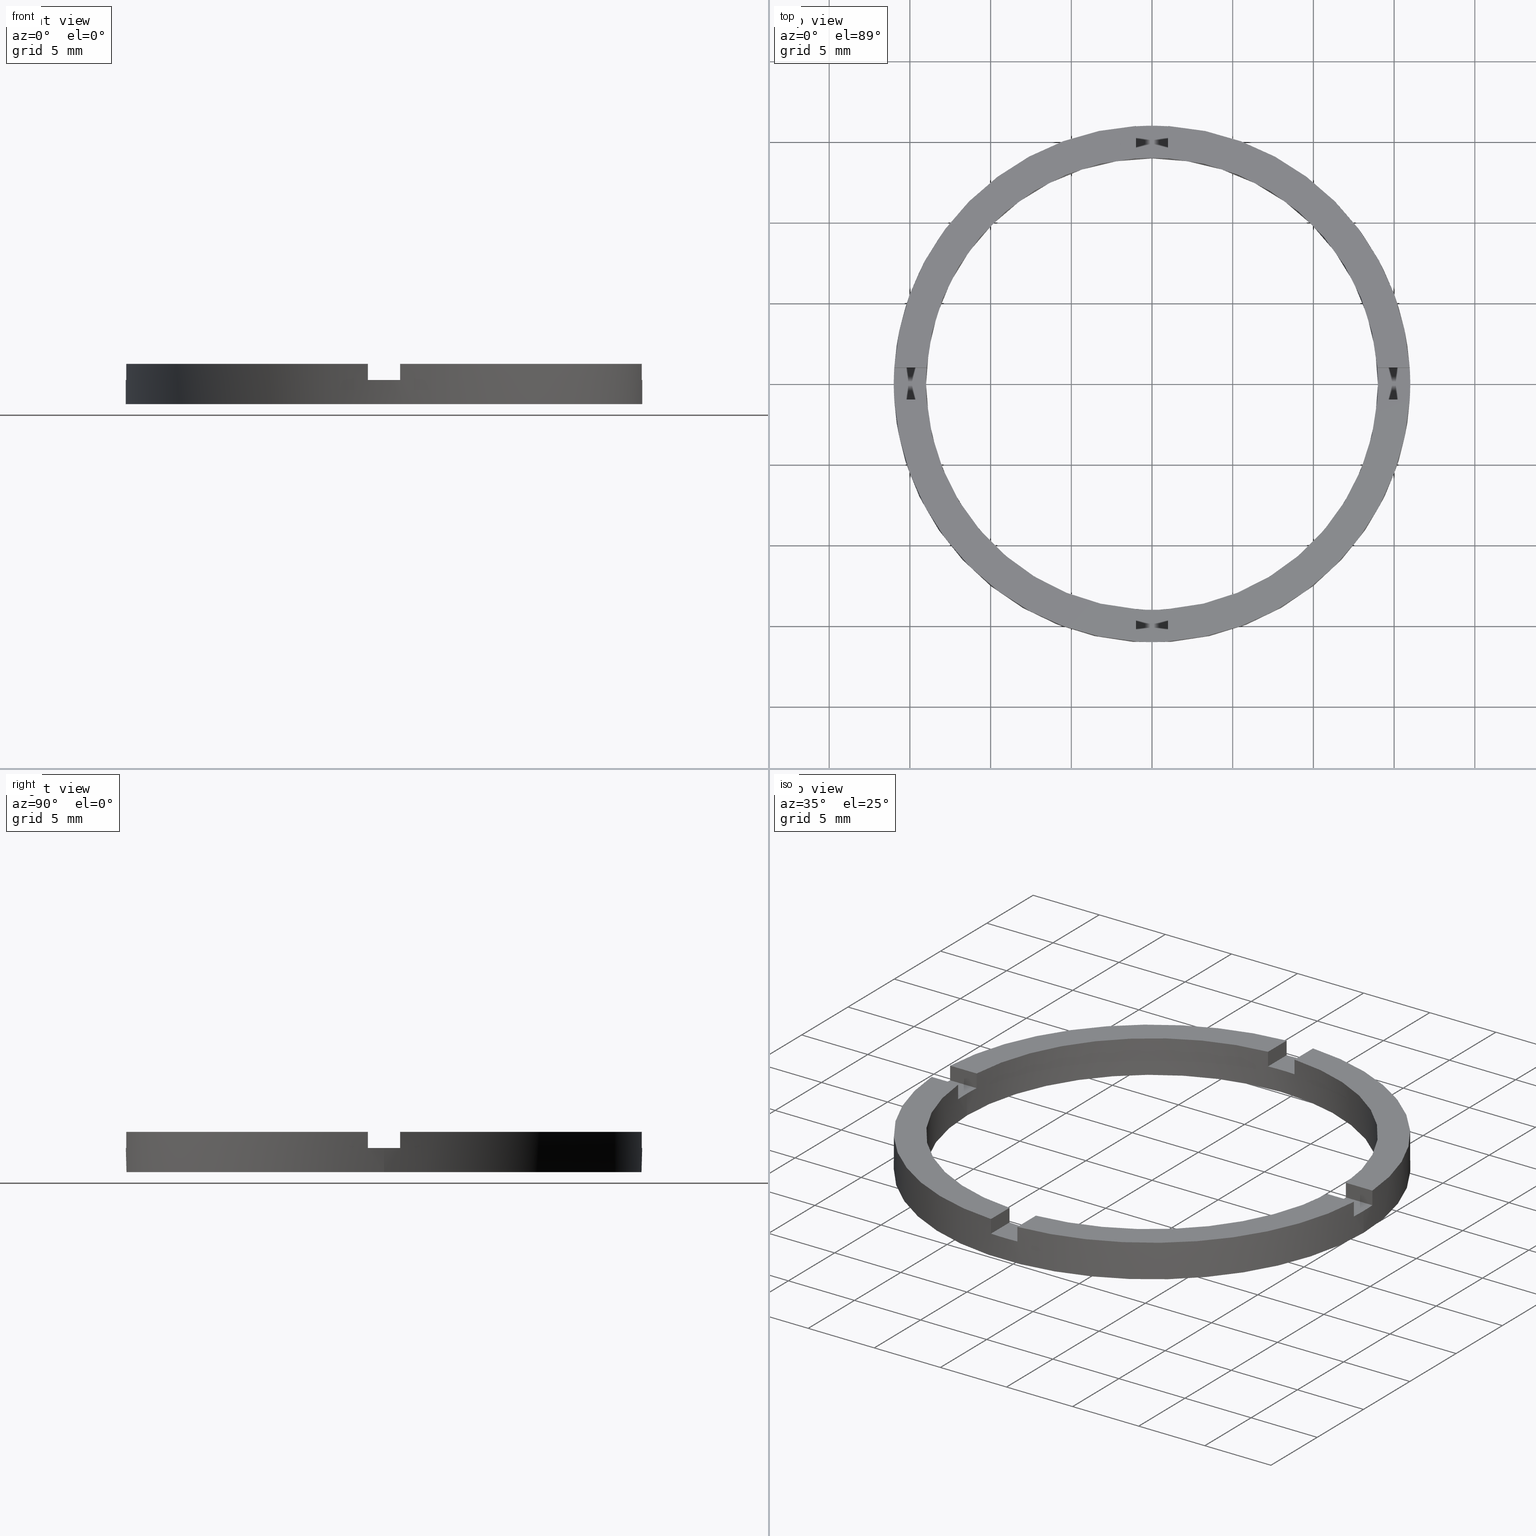
[diagram: canonical four-view strip — front | top / right | iso, engineering-drawing reading convention]
A machine part, canonical four-view strip (front | top / right | iso — engineering-drawing reading convention). The complete STEP part file that produces these views, byte-faithful:
ISO-10303-21;
HEADER;
FILE_DESCRIPTION (( 'STEP AP203' ),
    '1' );
FILE_NAME ('514070.step',
    '2024-12-26T02:34:41',
    ( 'MSI' ),
    ( '' ),
    'SwSTEP 2.0',
    'SolidWorks 2020',
    '' );
FILE_SCHEMA (( 'CONFIG_CONTROL_DESIGN' ));
ENDSEC;

DATA;
#1 = EDGE_CURVE ( 'NONE', #115, #639, #634, .T. ) ;
#2 = DIRECTION ( 'NONE',  ( 0.000000000000000000, 0.000000000000000000, 1.000000000000000000 ) ) ;
#3 = DIRECTION ( 'NONE',  ( 1.000000000000000000, 0.000000000000000000, 0.000000000000000000 ) ) ;
#4 = LINE ( 'NONE', #36, #654 ) ;
#5 = CARTESIAN_POINT ( 'NONE',  ( -15.96871942267131317, 0.9999999999999767963, 1.500000000000000000 ) ) ;
#6 = CARTESIAN_POINT ( 'NONE',  ( 15.96871942267132027, 0.9999999999998409050, 2.500000000000000000 ) ) ;
#7 = PLANE ( 'NONE',  #700 ) ;
#8 = CARTESIAN_POINT ( 'NONE',  ( 16.00000000000000000, 1.959434878635765131E-15, 1.500000000000000000 ) ) ;
#9 = CC_DESIGN_PERSON_AND_ORGANIZATION_ASSIGNMENT ( #519, #664, ( #312 ) ) ;
#10 = CARTESIAN_POINT ( 'NONE',  ( -1.000000000000162981, -13.96424004376893002, 1.500000000000000000 ) ) ;
#11 = CARTESIAN_POINT ( 'NONE',  ( -13.96424004376894068, -1.000000000000022871, 2.500000000000000000 ) ) ;
#12 = DIRECTION ( 'NONE',  ( 0.000000000000000000, 1.000000000000000000, 0.000000000000000000 ) ) ;
#13 = DIRECTION ( 'NONE',  ( 1.000000000000000000, 0.000000000000000000, 0.000000000000000000 ) ) ;
#14 = CARTESIAN_POINT ( 'NONE',  ( 14.00000000000000000, 1.714505518806294638E-15, 0.000000000000000000 ) ) ;
#15 = CARTESIAN_POINT ( 'NONE',  ( 0.000000000000000000, 0.000000000000000000, 1.500000000000000000 ) ) ;
#16 = CARTESIAN_POINT ( 'NONE',  ( 0.9999999999998373523, -15.96871942267132383, 2.500000000000000000 ) ) ;
#17 = PLANE ( 'NONE',  #536 ) ;
#18 = CARTESIAN_POINT ( 'NONE',  ( 0.000000000000000000, 0.000000000000000000, 1.500000000000000000 ) ) ;
#19 = APPROVAL_ROLE ( '' ) ;
#20 = DIRECTION ( 'NONE',  ( 0.000000000000000000, 0.000000000000000000, -1.000000000000000000 ) ) ;
#21 = CARTESIAN_POINT ( 'NONE',  ( 0.9999999999999751310, 13.96424004376894423, 2.500000000000000000 ) ) ;
#22 = EDGE_CURVE ( 'NONE', #681, #363, #626, .T. ) ;
#23 = EDGE_CURVE ( 'NONE', #216, #408, #616, .T. ) ;
#24 = DIRECTION ( 'NONE',  ( 1.000000000000000000, 0.000000000000000000, 0.000000000000000000 ) ) ;
#25 = CARTESIAN_POINT ( 'NONE',  ( 0.9999999999999751310, 15.96871942267131317, 1.500000000000000000 ) ) ;
#26 = ADVANCED_FACE ( 'NONE', ( #329 ), #50, .T. ) ;
#27 = DIRECTION ( 'NONE',  ( 1.000000000000000000, 0.000000000000000000, 0.000000000000000000 ) ) ;
#28 = CARTESIAN_POINT ( 'NONE',  ( 0.9999999999998361311, -6.000000000000180300, 1.500000000000000000 ) ) ;
#29 = APPROVAL ( #682, 'δָ��' ) ;
#30 = DIRECTION ( 'NONE',  ( -0.000000000000000000, -0.000000000000000000, -1.000000000000000000 ) ) ;
#31 = ADVANCED_FACE ( 'NONE', ( #185 ), #42, .F. ) ;
#32 = AXIS2_PLACEMENT_3D ( 'NONE', #555, #538, #324 ) ;
#33 = ADVANCED_FACE ( 'NONE', ( #193 ), #488, .F. ) ;
#34 = AXIS2_PLACEMENT_3D ( 'NONE', #569, #611, #60 ) ;
#35 = AXIS2_PLACEMENT_3D ( 'NONE', #590, #619, #293 ) ;
#36 = CARTESIAN_POINT ( 'NONE',  ( 15.96871942267132027, 0.9999999999998409050, 2.500000000000000000 ) ) ;
#37 = DIRECTION ( 'NONE',  ( -0.000000000000000000, -0.000000000000000000, -1.000000000000000000 ) ) ;
#38 = CARTESIAN_POINT ( 'NONE',  ( -6.000000000000185629, -1.000000000000021538, 1.500000000000000000 ) ) ;
#39 = DIRECTION ( 'NONE',  ( 1.301042606982605321E-16, -1.000000000000000000, 0.000000000000000000 ) ) ;
#40 = DIRECTION ( 'NONE',  ( 0.000000000000000000, 0.000000000000000000, 1.000000000000000000 ) ) ;
#41 = EDGE_CURVE ( 'NONE', #98, #115, #717, .T. ) ;
#42 = PLANE ( 'NONE',  #61 ) ;
#43 = PLANE ( 'NONE',  #313 ) ;
#44 = EDGE_CURVE ( 'NONE', #650, #453, #182, .T. ) ;
#45 = SECURITY_CLASSIFICATION_LEVEL ( 'unclassified' ) ;
#46 = AXIS2_PLACEMENT_3D ( 'NONE', #18, #561, #55 ) ;
#47 = CARTESIAN_POINT ( 'NONE',  ( 5.999999999999994671, -1.000000000000159650, 1.500000000000000000 ) ) ;
#48 = DIRECTION ( 'NONE',  ( 0.000000000000000000, 0.000000000000000000, 1.000000000000000000 ) ) ;
#49 = CARTESIAN_POINT ( 'NONE',  ( -6.000000000000185629, -1.000000000000021538, 1.500000000000000000 ) ) ;
#50 = PLANE ( 'NONE',  #99 ) ;
#51 = DIRECTION ( 'NONE',  ( 0.000000000000000000, 0.000000000000000000, 1.000000000000000000 ) ) ;
#52 = MECHANICAL_CONTEXT ( 'NONE', #437, 'mechanical' ) ;
#53 = APPROVAL ( #421, 'δָ��' ) ;
#54 = DIRECTION ( 'NONE',  ( 1.000000000000000000, 1.734723475976807341E-16, 0.000000000000000000 ) ) ;
#55 = DIRECTION ( 'NONE',  ( 1.000000000000000000, 0.000000000000000000, 0.000000000000000000 ) ) ;
#56 = DIRECTION ( 'NONE',  ( 1.301042606982605321E-16, -1.000000000000000000, 0.000000000000000000 ) ) ;
#57 = AXIS2_PLACEMENT_3D ( 'NONE', #622, #369, #714 ) ;
#58 = DIRECTION ( 'NONE',  ( -0.000000000000000000, 0.000000000000000000, 1.000000000000000000 ) ) ;
#59 = CARTESIAN_POINT ( 'NONE',  ( 0.9999999999998373523, -15.96871942267132383, 2.500000000000000000 ) ) ;
#60 = DIRECTION ( 'NONE',  ( 1.000000000000000000, 0.000000000000000000, -0.000000000000000000 ) ) ;
#61 = AXIS2_PLACEMENT_3D ( 'NONE', #240, #379, #276 ) ;
#62 = CALENDAR_DATE ( 2024, 26, 12 ) ;
#63 = EDGE_CURVE ( 'NONE', #83, #364, #458, .T. ) ;
#64 = AXIS2_PLACEMENT_3D ( 'NONE', #413, #514, #13 ) ;
#65 = CARTESIAN_POINT ( 'NONE',  ( 5.999999999999994671, -1.000000000000159650, 1.500000000000000000 ) ) ;
#66 = EDGE_CURVE ( 'NONE', #484, #672, #451, .T. ) ;
#67 = CARTESIAN_POINT ( 'NONE',  ( 16.00000000000000000, 1.959434878635765131E-15, 2.500000000000000000 ) ) ;
#68 = CALENDAR_DATE ( 2024, 26, 12 ) ;
#69 = EDGE_CURVE ( 'NONE', #679, #149, #189, .T. ) ;
#70 = DIRECTION ( 'NONE',  ( 0.000000000000000000, 0.000000000000000000, 1.000000000000000000 ) ) ;
#71 = DIRECTION ( 'NONE',  ( 0.000000000000000000, 0.000000000000000000, 1.000000000000000000 ) ) ;
#72 = EDGE_LOOP ( 'NONE', ( #407, #153, #203, #399, #496, #404, #638, #409, #716, #642, #121, #150 ) ) ;
#73 = PERSON_AND_ORGANIZATION ( #647, #644 ) ;
#74 = VECTOR ( 'NONE', #596, 1000.000000000000000 ) ;
#75 = COORDINATED_UNIVERSAL_TIME_OFFSET ( 8, 0, .AHEAD. ) ;
#76 = DIRECTION ( 'NONE',  ( 0.000000000000000000, 0.000000000000000000, 1.000000000000000000 ) ) ;
#77 = DIRECTION ( 'NONE',  ( -1.000000000000000000, 0.000000000000000000, 0.000000000000000000 ) ) ;
#78 = DIRECTION ( 'NONE',  ( -1.000000000000000000, -1.734723475976807341E-16, 0.000000000000000000 ) ) ;
#79 = CARTESIAN_POINT ( 'NONE',  ( 15.96871942267132027, 0.9999999999998409050, 1.500000000000000000 ) ) ;
#80 = VECTOR ( 'NONE', #190, 1000.000000000000000 ) ;
#81 = CARTESIAN_POINT ( 'NONE',  ( -15.96871942267130962, -1.000000000000023315, 2.500000000000000000 ) ) ;
#82 = AXIS2_PLACEMENT_3D ( 'NONE', #341, #578, #335 ) ;
#83 = VERTEX_POINT ( 'NONE', #584 ) ;
#84 = DIRECTION ( 'NONE',  ( 1.000000000000000000, 0.000000000000000000, -0.000000000000000000 ) ) ;
#85 = VECTOR ( 'NONE', #656, 1000.000000000000000 ) ;
#86 = CARTESIAN_POINT ( 'NONE',  ( 0.000000000000000000, 0.000000000000000000, 0.000000000000000000 ) ) ;
#87 = EDGE_CURVE ( 'NONE', #633, #169, #712, .T. ) ;
#88 = AXIS2_PLACEMENT_3D ( 'NONE', #527, #518, #261 ) ;
#89 = VECTOR ( 'NONE', #510, 1000.000000000000000 ) ;
#90 = LINE ( 'NONE', #38, #89 ) ;
#91 =( LENGTH_UNIT ( ) NAMED_UNIT ( * ) SI_UNIT ( .MILLI., .METRE. ) );
#92 = VECTOR ( 'NONE', #260, 1000.000000000000000 ) ;
#93 = ORIENTED_EDGE ( 'NONE', *, *, #268, .F. ) ;
#94 = ORIENTED_EDGE ( 'NONE', *, *, #580, .F. ) ;
#95 = DIRECTION ( 'NONE',  ( 0.000000000000000000, 0.000000000000000000, 1.000000000000000000 ) ) ;
#96 = VECTOR ( 'NONE', #51, 1000.000000000000000 ) ;
#97 = LINE ( 'NONE', #400, #635 ) ;
#98 = VERTEX_POINT ( 'NONE', #314 ) ;
#99 = AXIS2_PLACEMENT_3D ( 'NONE', #594, #477, #542 ) ;
#100 = LINE ( 'NONE', #603, #92 ) ;
#101 = ORIENTED_EDGE ( 'NONE', *, *, #44, .T. ) ;
#102 = DIRECTION ( 'NONE',  ( 0.000000000000000000, 0.000000000000000000, 1.000000000000000000 ) ) ;
#103 = CARTESIAN_POINT ( 'NONE',  ( -14.00000000000000000, 0.000000000000000000, 1.500000000000000000 ) ) ;
#104 = EDGE_LOOP ( 'NONE', ( #208, #163, #414, #661 ) ) ;
#105 = VERTEX_POINT ( 'NONE', #732 ) ;
#106 = EDGE_CURVE ( 'NONE', #337, #330, #97, .T. ) ;
#107 = ORIENTED_EDGE ( 'NONE', *, *, #752, .T. ) ;
#108 = UNCERTAINTY_MEASURE_WITH_UNIT (LENGTH_MEASURE( 1.000000000000000082E-05 ), #91, 'distance_accuracy_value', 'NONE');
#109 = ORIENTED_EDGE ( 'NONE', *, *, #601, .T. ) ;
#110 = AXIS2_PLACEMENT_3D ( 'NONE', #674, #175, #20 ) ;
#111 = VECTOR ( 'NONE', #273, 1000.000000000000000 ) ;
#112 = CYLINDRICAL_SURFACE ( 'NONE', #35, 14.00000000000000000 ) ;
#113 = ORIENTED_EDGE ( 'NONE', *, *, #517, .T. ) ;
#114 = PERSON_AND_ORGANIZATION ( #647, #644 ) ;
#115 = VERTEX_POINT ( 'NONE', #5 ) ;
#116 = APPROVAL_ROLE ( '' ) ;
#117 = FACE_OUTER_BOUND ( 'NONE', #186, .T. ) ;
#118 = CIRCLE ( 'NONE', #560, 16.00000000000000000 ) ;
#119 = VERTEX_POINT ( 'NONE', #509 ) ;
#120 = ORIENTED_EDGE ( 'NONE', *, *, #588, .T. ) ;
#121 = ORIENTED_EDGE ( 'NONE', *, *, #247, .T. ) ;
#122 = CARTESIAN_POINT ( 'NONE',  ( 13.96424004376895311, 0.9999999999998409050, 2.500000000000000000 ) ) ;
#123 = ORIENTED_EDGE ( 'NONE', *, *, #403, .T. ) ;
#124 = ORIENTED_EDGE ( 'NONE', *, *, #586, .F. ) ;
#125 = VECTOR ( 'NONE', #326, 1000.000000000000000 ) ;
#126 = ORIENTED_EDGE ( 'NONE', *, *, #441, .T. ) ;
#127 = ORIENTED_EDGE ( 'NONE', *, *, #517, .F. ) ;
#128 = ORIENTED_EDGE ( 'NONE', *, *, #264, .T. ) ;
#129 = EDGE_LOOP ( 'NONE', ( #478, #658, #684, #501 ) ) ;
#130 = EDGE_LOOP ( 'NONE', ( #157, #729, #167, #456, #113, #180, #706, #713, #440, #696, #424, #159 ) ) ;
#131 = ORIENTED_EDGE ( 'NONE', *, *, #278, .F. ) ;
#132 = ORIENTED_EDGE ( 'NONE', *, *, #239, .T. ) ;
#133 = ORIENTED_EDGE ( 'NONE', *, *, #23, .T. ) ;
#134 = DIRECTION ( 'NONE',  ( 1.000000000000000000, 4.336808689942018352E-17, 0.000000000000000000 ) ) ;
#135 = ADVANCED_FACE ( 'NONE', ( #627 ), #112, .F. ) ;
#136 = ORIENTED_EDGE ( 'NONE', *, *, #734, .F. ) ;
#137 = AXIS2_PLACEMENT_3D ( 'NONE', #614, #529, #27 ) ;
#138 = ORIENTED_EDGE ( 'NONE', *, *, #22, .T. ) ;
#139 = VECTOR ( 'NONE', #772, 1000.000000000000000 ) ;
#140 = VERTEX_POINT ( 'NONE', #25 ) ;
#141 = CIRCLE ( 'NONE', #583, 14.00000000000000000 ) ;
#142 = ORIENTED_EDGE ( 'NONE', *, *, #547, .T. ) ;
#143 = CIRCLE ( 'NONE', #242, 16.00000000000000000 ) ;
#144 = EDGE_LOOP ( 'NONE', ( #503, #352, #766, #127, #94, #757 ) ) ;
#145 = EDGE_CURVE ( 'NONE', #140, #377, #346, .T. ) ;
#146 = CARTESIAN_POINT ( 'NONE',  ( 0.000000000000000000, 0.000000000000000000, 1.500000000000000000 ) ) ;
#147 = ADVANCED_FACE ( 'NONE', ( #631 ), #699, .T. ) ;
#148 = ORIENTED_EDGE ( 'NONE', *, *, #239, .F. ) ;
#149 = VERTEX_POINT ( 'NONE', #449 ) ;
#150 = ORIENTED_EDGE ( 'NONE', *, *, #593, .F. ) ;
#151 = LINE ( 'NONE', #67, #422 ) ;
#152 = VERTEX_POINT ( 'NONE', #693 ) ;
#153 = ORIENTED_EDGE ( 'NONE', *, *, #278, .T. ) ;
#154 = FACE_OUTER_BOUND ( 'NONE', #412, .T. ) ;
#155 = ORIENTED_EDGE ( 'NONE', *, *, #564, .F. ) ;
#156 = DIRECTION ( 'NONE',  ( 0.000000000000000000, 0.000000000000000000, 1.000000000000000000 ) ) ;
#157 = ORIENTED_EDGE ( 'NONE', *, *, #446, .T. ) ;
#158 = CIRCLE ( 'NONE', #234, 14.00000000000000000 ) ;
#159 = ORIENTED_EDGE ( 'NONE', *, *, #653, .F. ) ;
#160 = ORIENTED_EDGE ( 'NONE', *, *, #168, .T. ) ;
#161 = DIRECTION ( 'NONE',  ( 1.000000000000000000, 0.000000000000000000, 0.000000000000000000 ) ) ;
#162 = CARTESIAN_POINT ( 'NONE',  ( 0.000000000000000000, 0.000000000000000000, 0.000000000000000000 ) ) ;
#163 = ORIENTED_EDGE ( 'NONE', *, *, #302, .F. ) ;
#164 = FACE_OUTER_BOUND ( 'NONE', #623, .T. ) ;
#165 = ORIENTED_EDGE ( 'NONE', *, *, #547, .F. ) ;
#166 = CIRCLE ( 'NONE', #553, 16.00000000000000000 ) ;
#167 = ORIENTED_EDGE ( 'NONE', *, *, #264, .F. ) ;
#168 = EDGE_CURVE ( 'NONE', #679, #639, #118, .T. ) ;
#169 = VERTEX_POINT ( 'NONE', #318 ) ;
#170 = VECTOR ( 'NONE', #259, 1000.000000000000000 ) ;
#171 = DIRECTION ( 'NONE',  ( -1.000000000000000000, 0.000000000000000000, 0.000000000000000000 ) ) ;
#172 = DIRECTION ( 'NONE',  ( 0.000000000000000000, -0.000000000000000000, 1.000000000000000000 ) ) ;
#173 = CC_DESIGN_APPROVAL ( #225, ( #255 ) ) ;
#174 = CIRCLE ( 'NONE', #321, 14.00000000000000000 ) ;
#175 = DIRECTION ( 'NONE',  ( 1.000000000000000000, -0.000000000000000000, 0.000000000000000000 ) ) ;
#176 = ORIENTED_EDGE ( 'NONE', *, *, #66, .F. ) ;
#177 = ORIENTED_EDGE ( 'NONE', *, *, #540, .F. ) ;
#178 = DESIGN_CONTEXT ( 'detailed design', #199, 'design' ) ;
#179 = VERTEX_POINT ( 'NONE', #549 ) ;
#180 = ORIENTED_EDGE ( 'NONE', *, *, #63, .F. ) ;
#181 = CARTESIAN_POINT ( 'NONE',  ( 0.9999999999999751310, 6.000000000000000000, 1.500000000000000000 ) ) ;
#182 = LINE ( 'NONE', #628, #443 ) ;
#183 = PLANE ( 'NONE',  #448 ) ;
#184 = EDGE_LOOP ( 'NONE', ( #128, #685 ) ) ;
#185 = FACE_OUTER_BOUND ( 'NONE', #711, .T. ) ;
#186 = EDGE_LOOP ( 'NONE', ( #756, #374, #486, #375 ) ) ;
#187 = AXIS2_PLACEMENT_3D ( 'NONE', #378, #236, #271 ) ;
#188 = VERTEX_POINT ( 'NONE', #21 ) ;
#189 = LINE ( 'NONE', #248, #439 ) ;
#190 = DIRECTION ( 'NONE',  ( 1.000000000000000000, 4.336808689942018352E-17, 0.000000000000000000 ) ) ;
#191 = CARTESIAN_POINT ( 'NONE',  ( 0.000000000000000000, 0.000000000000000000, 1.500000000000000000 ) ) ;
#192 = ORIENTED_EDGE ( 'NONE', *, *, #376, .F. ) ;
#193 = FACE_OUTER_BOUND ( 'NONE', #444, .T. ) ;
#194 = EDGE_CURVE ( 'NONE', #345, #188, #665, .T. ) ;
#195 = CARTESIAN_POINT ( 'NONE',  ( 0.000000000000000000, 0.000000000000000000, 2.500000000000000000 ) ) ;
#196 = CARTESIAN_POINT ( 'NONE',  ( 15.96871942267130429, -1.000000000000159206, 2.500000000000000000 ) ) ;
#197 = ORIENTED_EDGE ( 'NONE', *, *, #69, .T. ) ;
#198 = VECTOR ( 'NONE', #258, 1000.000000000000000 ) ;
#199 = APPLICATION_CONTEXT ( 'configuration controlled 3d designs of mechanical parts and assemblies' ) ;
#200 = CIRCLE ( 'NONE', #774, 16.00000000000000000 ) ;
#201 = VERTEX_POINT ( 'NONE', #10 ) ;
#202 = VECTOR ( 'NONE', #12, 1000.000000000000000 ) ;
#203 = ORIENTED_EDGE ( 'NONE', *, *, #291, .F. ) ;
#204 = CARTESIAN_POINT ( 'NONE',  ( -14.00000000000000000, 0.000000000000000000, 2.500000000000000000 ) ) ;
#205 = CARTESIAN_POINT ( 'NONE',  ( -13.96424004376894246, 0.9999999999999772404, 2.500000000000000000 ) ) ;
#206 = VERTEX_POINT ( 'NONE', #284 ) ;
#207 = CLOSED_SHELL ( 'NONE', ( #135, #531, #26, #539, #147, #615, #577, #301, #367, #232, #354, #343, #707, #270, #296, #31, #621, #465, #33, #537, #572 ) ) ;
#208 = ORIENTED_EDGE ( 'NONE', *, *, #752, .F. ) ;
#209 = EDGE_LOOP ( 'NONE', ( #393, #126, #107, #192 ) ) ;
#210 = EDGE_CURVE ( 'NONE', #633, #140, #380, .T. ) ;
#211 = ORIENTED_EDGE ( 'NONE', *, *, #677, .F. ) ;
#212 = CIRCLE ( 'NONE', #250, 14.00000000000000000 ) ;
#213 = ORIENTED_EDGE ( 'NONE', *, *, #446, .F. ) ;
#214 = VECTOR ( 'NONE', #563, 1000.000000000000000 ) ;
#215 = LOCAL_TIME ( 10, 34, 41.00000000000000000, #764 ) ;
#216 = VERTEX_POINT ( 'NONE', #602 ) ;
#217 = FACE_OUTER_BOUND ( 'NONE', #671, .T. ) ;
#218 = APPROVAL_PERSON_ORGANIZATION ( #598, #53, #743 ) ;
#219 = DIRECTION ( 'NONE',  ( -0.000000000000000000, -0.000000000000000000, -1.000000000000000000 ) ) ;
#220 = ORIENTED_EDGE ( 'NONE', *, *, #566, .T. ) ;
#221 = LINE ( 'NONE', #749, #202 ) ;
#222 = VECTOR ( 'NONE', #249, 1000.000000000000000 ) ;
#223 = APPROVAL_PERSON_ORGANIZATION ( #235, #29, #116 ) ;
#224 = ORIENTED_EDGE ( 'NONE', *, *, #231, .F. ) ;
#225 = APPROVAL ( #768, 'δָ��' ) ;
#226 = VECTOR ( 'NONE', #265, 1000.000000000000000 ) ;
#227 = COORDINATED_UNIVERSAL_TIME_OFFSET ( 8, 0, .AHEAD. ) ;
#228 = FACE_OUTER_BOUND ( 'NONE', #753, .T. ) ;
#229 = PLANE ( 'NONE',  #546 ) ;
#230 = CYLINDRICAL_SURFACE ( 'NONE', #57, 14.00000000000000000 ) ;
#231 = EDGE_CURVE ( 'NONE', #337, #363, #355, .T. ) ;
#232 = ADVANCED_FACE ( 'NONE', ( #637 ), #17, .F. ) ;
#233 = DIRECTION ( 'NONE',  ( -0.000000000000000000, -0.000000000000000000, -1.000000000000000000 ) ) ;
#234 = AXIS2_PLACEMENT_3D ( 'NONE', #587, #543, #274 ) ;
#235 = PERSON_AND_ORGANIZATION ( #647, #644 ) ;
#236 = DIRECTION ( 'NONE',  ( 0.000000000000000000, 0.000000000000000000, 1.000000000000000000 ) ) ;
#237 = AXIS2_PLACEMENT_3D ( 'NONE', #390, #544, #319 ) ;
#238 = PERSON_AND_ORGANIZATION ( #647, #644 ) ;
#239 = EDGE_CURVE ( 'NONE', #408, #494, #143, .T. ) ;
#240 = CARTESIAN_POINT ( 'NONE',  ( 5.999999999999994671, 0.9999999999998404610, 1.500000000000000000 ) ) ;
#241 = CARTESIAN_POINT ( 'NONE',  ( 13.96424004376893002, -1.000000000000159206, 2.500000000000000000 ) ) ;
#242 = AXIS2_PLACEMENT_3D ( 'NONE', #279, #102, #525 ) ;
#243 = DIRECTION ( 'NONE',  ( -1.000000000000000000, -1.301042606982605321E-16, 0.000000000000000000 ) ) ;
#244 = DIRECTION ( 'NONE',  ( -0.000000000000000000, -0.000000000000000000, -1.000000000000000000 ) ) ;
#245 = CARTESIAN_POINT ( 'NONE',  ( 0.000000000000000000, 0.000000000000000000, 2.500000000000000000 ) ) ;
#246 = EDGE_CURVE ( 'NONE', #140, #507, #395, .T. ) ;
#247 = EDGE_CURVE ( 'NONE', #745, #206, #675, .T. ) ;
#248 = CARTESIAN_POINT ( 'NONE',  ( -1.000000000000024869, 6.000000000000000000, 2.500000000000000000 ) ) ;
#249 = DIRECTION ( 'NONE',  ( 0.000000000000000000, 0.000000000000000000, 1.000000000000000000 ) ) ;
#250 = AXIS2_PLACEMENT_3D ( 'NONE', #162, #464, #3 ) ;
#251 = DIRECTION ( 'NONE',  ( 0.000000000000000000, 0.000000000000000000, 1.000000000000000000 ) ) ;
#252 = CARTESIAN_POINT ( 'NONE',  ( 0.000000000000000000, 0.000000000000000000, 0.000000000000000000 ) ) ;
#253 = FACE_OUTER_BOUND ( 'NONE', #666, .T. ) ;
#254 = CARTESIAN_POINT ( 'NONE',  ( 0.000000000000000000, 0.000000000000000000, 2.500000000000000000 ) ) ;
#255 = PRODUCT_DEFINITION ( 'δ֪', '', #467, #178 ) ;
#256 = DIRECTION ( 'NONE',  ( 0.000000000000000000, 0.000000000000000000, 1.000000000000000000 ) ) ;
#257 = AXIS2_PLACEMENT_3D ( 'NONE', #334, #256, #436 ) ;
#258 = DIRECTION ( 'NONE',  ( -0.000000000000000000, -1.000000000000000000, -0.000000000000000000 ) ) ;
#259 = DIRECTION ( 'NONE',  ( -0.000000000000000000, -0.000000000000000000, -1.000000000000000000 ) ) ;
#260 = DIRECTION ( 'NONE',  ( 1.301042606982605321E-16, -1.000000000000000000, 0.000000000000000000 ) ) ;
#261 = DIRECTION ( 'NONE',  ( 1.000000000000000000, 0.000000000000000000, 0.000000000000000000 ) ) ;
#262 = EDGE_CURVE ( 'NONE', #681, #83, #430, .T. ) ;
#263 = CARTESIAN_POINT ( 'NONE',  ( 0.000000000000000000, 0.000000000000000000, 2.500000000000000000 ) ) ;
#264 = EDGE_CURVE ( 'NONE', #206, #608, #141, .T. ) ;
#265 = DIRECTION ( 'NONE',  ( -0.000000000000000000, -0.000000000000000000, -1.000000000000000000 ) ) ;
#266 = CARTESIAN_POINT ( 'NONE',  ( -15.96871942267131317, 0.9999999999999767963, 2.500000000000000000 ) ) ;
#267 = DIRECTION ( 'NONE',  ( -0.000000000000000000, 0.000000000000000000, 1.000000000000000000 ) ) ;
#268 = EDGE_CURVE ( 'NONE', #679, #377, #697, .T. ) ;
#269 = AXIS2_PLACEMENT_3D ( 'NONE', #245, #709, #281 ) ;
#270 = ADVANCED_FACE ( 'NONE', ( #678 ), #7, .F. ) ;
#271 = DIRECTION ( 'NONE',  ( 1.000000000000000000, 0.000000000000000000, 0.000000000000000000 ) ) ;
#272 = CARTESIAN_POINT ( 'NONE',  ( 0.000000000000000000, 0.000000000000000000, 2.500000000000000000 ) ) ;
#273 = DIRECTION ( 'NONE',  ( 0.000000000000000000, 0.000000000000000000, 1.000000000000000000 ) ) ;
#274 = DIRECTION ( 'NONE',  ( 1.000000000000000000, 0.000000000000000000, 0.000000000000000000 ) ) ;
#275 = DIRECTION ( 'NONE',  ( -0.000000000000000000, -0.000000000000000000, -1.000000000000000000 ) ) ;
#276 = DIRECTION ( 'NONE',  ( -1.000000000000000000, -4.336808689942018352E-17, 0.000000000000000000 ) ) ;
#277 = DIRECTION ( 'NONE',  ( 1.000000000000000000, 0.000000000000000000, 0.000000000000000000 ) ) ;
#278 = EDGE_CURVE ( 'NONE', #394, #453, #158, .T. ) ;
#279 = CARTESIAN_POINT ( 'NONE',  ( 0.000000000000000000, 0.000000000000000000, 1.500000000000000000 ) ) ;
#280 = CARTESIAN_POINT ( 'NONE',  ( -15.96871942267131317, 0.9999999999999767963, 2.500000000000000000 ) ) ;
#281 = DIRECTION ( 'NONE',  ( 1.000000000000000000, 0.000000000000000000, 0.000000000000000000 ) ) ;
#282 = CARTESIAN_POINT ( 'NONE',  ( 0.000000000000000000, 0.000000000000000000, 0.000000000000000000 ) ) ;
#283 = CARTESIAN_POINT ( 'NONE',  ( 5.999999999999994671, 0.9999999999998404610, 2.500000000000000000 ) ) ;
#284 = CARTESIAN_POINT ( 'NONE',  ( -14.00000000000000000, 0.000000000000000000, 0.000000000000000000 ) ) ;
#285 = DIRECTION ( 'NONE',  ( -1.000000000000000000, -4.336808689942018352E-17, -0.000000000000000000 ) ) ;
#286 = EDGE_CURVE ( 'NONE', #394, #608, #411, .T. ) ;
#287 = CC_DESIGN_PERSON_AND_ORGANIZATION_ASSIGNMENT ( #238, #673, ( #467 ) ) ;
#288 = DIRECTION ( 'NONE',  ( -1.301042606982605321E-16, 1.000000000000000000, 0.000000000000000000 ) ) ;
#289 = PLANE ( 'NONE',  #110 ) ;
#290 = DIRECTION ( 'NONE',  ( -1.000000000000000000, -1.734723475976807341E-16, 0.000000000000000000 ) ) ;
#291 = EDGE_CURVE ( 'NONE', #345, #453, #428, .T. ) ;
#292 = DIRECTION ( 'NONE',  ( 1.000000000000000000, 0.000000000000000000, 0.000000000000000000 ) ) ;
#293 = DIRECTION ( 'NONE',  ( -1.000000000000000000, 0.000000000000000000, 0.000000000000000000 ) ) ;
#294 = AXIS2_PLACEMENT_3D ( 'NONE', #670, #328, #288 ) ;
#295 = PLANE ( 'NONE',  #366 ) ;
#296 = ADVANCED_FACE ( 'NONE', ( #686 ), #459, .T. ) ;
#297 = CARTESIAN_POINT ( 'NONE',  ( -16.00000000000000000, 0.000000000000000000, 0.000000000000000000 ) ) ;
#298 = CARTESIAN_POINT ( 'NONE',  ( 13.96424004376895311, 0.9999999999998409050, 2.500000000000000000 ) ) ;
#299 = DIRECTION ( 'NONE',  ( -1.000000000000000000, -1.734723475976807341E-16, 0.000000000000000000 ) ) ;
#300 = DIRECTION ( 'NONE',  ( 1.000000000000000000, 0.000000000000000000, 0.000000000000000000 ) ) ;
#301 = ADVANCED_FACE ( 'NONE', ( #164 ), #705, .T. ) ;
#302 = EDGE_CURVE ( 'NONE', #83, #356, #418, .T. ) ;
#303 = CARTESIAN_POINT ( 'NONE',  ( -6.000000000000185629, 0.9999999999999785727, 1.500000000000000000 ) ) ;
#304 = EDGE_CURVE ( 'NONE', #660, #507, #166, .T. ) ;
#305 = CARTESIAN_POINT ( 'NONE',  ( -1.000000000000162981, -13.96424004376893002, 2.500000000000000000 ) ) ;
#306 = APPROVAL_DATE_TIME ( #606, #225 ) ;
#307 = LOCAL_TIME ( 10, 34, 41.00000000000000000, #75 ) ;
#308 = DATE_AND_TIME ( #62, #307 ) ;
#309 = DIRECTION ( 'NONE',  ( -0.000000000000000000, -1.000000000000000000, -0.000000000000000000 ) ) ;
#310 = DIRECTION ( 'NONE',  ( 1.000000000000000000, 0.000000000000000000, -0.000000000000000000 ) ) ;
#311 = CARTESIAN_POINT ( 'NONE',  ( -1.000000000000163869, -6.000000000000180300, 1.500000000000000000 ) ) ;
#312 = SECURITY_CLASSIFICATION ( '', '', #45 ) ;
#313 = AXIS2_PLACEMENT_3D ( 'NONE', #252, #591, #84 ) ;
#314 = CARTESIAN_POINT ( 'NONE',  ( -13.96424004376894246, 0.9999999999999772404, 1.500000000000000000 ) ) ;
#315 = CARTESIAN_POINT ( 'NONE',  ( 15.96871942267130429, -1.000000000000159206, 2.500000000000000000 ) ) ;
#316 = EDGE_CURVE ( 'NONE', #105, #419, #174, .T. ) ;
#317 = DIRECTION ( 'NONE',  ( -0.000000000000000000, -0.000000000000000000, -1.000000000000000000 ) ) ;
#318 = CARTESIAN_POINT ( 'NONE',  ( -1.000000000000024869, 13.96424004376894068, 1.500000000000000000 ) ) ;
#319 = DIRECTION ( 'NONE',  ( 1.000000000000000000, 0.000000000000000000, 0.000000000000000000 ) ) ;
#320 = CARTESIAN_POINT ( 'NONE',  ( 0.000000000000000000, 0.000000000000000000, 1.500000000000000000 ) ) ;
#321 = AXIS2_PLACEMENT_3D ( 'NONE', #620, #71, #24 ) ;
#322 = PLANE ( 'NONE',  #491 ) ;
#323 = DIRECTION ( 'NONE',  ( 1.000000000000000000, 0.000000000000000000, 0.000000000000000000 ) ) ;
#324 = DIRECTION ( 'NONE',  ( 1.000000000000000000, 0.000000000000000000, 0.000000000000000000 ) ) ;
#325 = AXIS2_PLACEMENT_3D ( 'NONE', #272, #70, #161 ) ;
#326 = DIRECTION ( 'NONE',  ( 0.000000000000000000, 1.000000000000000000, 0.000000000000000000 ) ) ;
#327 = AXIS2_PLACEMENT_3D ( 'NONE', #609, #689, #776 ) ;
#328 = DIRECTION ( 'NONE',  ( 1.000000000000000000, 1.301042606982605321E-16, 0.000000000000000000 ) ) ;
#329 = FACE_OUTER_BOUND ( 'NONE', #425, .T. ) ;
#330 = VERTEX_POINT ( 'NONE', #297 ) ;
#331 = DIRECTION ( 'NONE',  ( 0.000000000000000000, 0.000000000000000000, 1.000000000000000000 ) ) ;
#332 = VERTEX_POINT ( 'NONE', #613 ) ;
#333 = EDGE_CURVE ( 'NONE', #484, #332, #702, .T. ) ;
#334 = CARTESIAN_POINT ( 'NONE',  ( 0.000000000000000000, 0.000000000000000000, 2.500000000000000000 ) ) ;
#335 = DIRECTION ( 'NONE',  ( 1.000000000000000000, 0.000000000000000000, 0.000000000000000000 ) ) ;
#336 = EDGE_CURVE ( 'NONE', #494, #152, #151, .T. ) ;
#337 = VERTEX_POINT ( 'NONE', #468 ) ;
#338 = EDGE_LOOP ( 'NONE', ( #736, #687, #142, #442 ) ) ;
#339 = AXIS2_PLACEMENT_3D ( 'NONE', #65, #585, #134 ) ;
#340 = ORIENTED_EDGE ( 'NONE', *, *, #87, .F. ) ;
#341 = CARTESIAN_POINT ( 'NONE',  ( 0.000000000000000000, 0.000000000000000000, 1.500000000000000000 ) ) ;
#342 = DIRECTION ( 'NONE',  ( 0.000000000000000000, 0.000000000000000000, 1.000000000000000000 ) ) ;
#343 = ADVANCED_FACE ( 'NONE', ( #432 ), #782, .T. ) ;
#344 = LINE ( 'NONE', #643, #657 ) ;
#345 = VERTEX_POINT ( 'NONE', #298 ) ;
#346 = CIRCLE ( 'NONE', #137, 16.00000000000000000 ) ;
#347 = ORIENTED_EDGE ( 'NONE', *, *, #336, .F. ) ;
#348 = CARTESIAN_POINT ( 'NONE',  ( -1.000000000000162759, -15.96871942267130073, 2.500000000000000000 ) ) ;
#349 = CIRCLE ( 'NONE', #257, 16.00000000000000000 ) ;
#350 = CC_DESIGN_DATE_AND_TIME_ASSIGNMENT ( #505, #426, ( #312 ) ) ;
#351 = DIRECTION ( 'NONE',  ( -0.000000000000000000, -0.000000000000000000, -1.000000000000000000 ) ) ;
#352 = ORIENTED_EDGE ( 'NONE', *, *, #231, .T. ) ;
#353 =( GEOMETRIC_REPRESENTATION_CONTEXT ( 3 ) GLOBAL_UNCERTAINTY_ASSIGNED_CONTEXT ( ( #108 ) ) GLOBAL_UNIT_ASSIGNED_CONTEXT ( ( #91, #604, #646 ) ) REPRESENTATION_CONTEXT ( 'NONE', 'WORKASPACE' ) );
#354 = ADVANCED_FACE ( 'NONE', ( #154 ), #295, .F. ) ;
#355 = CIRCLE ( 'NONE', #64, 16.00000000000000000 ) ;
#356 = VERTEX_POINT ( 'NONE', #780 ) ;
#357 = ORIENTED_EDGE ( 'NONE', *, *, #512, .F. ) ;
#358 = EDGE_CURVE ( 'NONE', #201, #708, #497, .T. ) ;
#359 = CARTESIAN_POINT ( 'NONE',  ( 0.000000000000000000, 0.000000000000000000, 2.500000000000000000 ) ) ;
#360 = ORIENTED_EDGE ( 'NONE', *, *, #145, .F. ) ;
#361 = DIRECTION ( 'NONE',  ( -0.000000000000000000, -0.000000000000000000, -1.000000000000000000 ) ) ;
#362 = LINE ( 'NONE', #196, #96 ) ;
#363 = VERTEX_POINT ( 'NONE', #438 ) ;
#364 = VERTEX_POINT ( 'NONE', #571 ) ;
#365 = ORIENTED_EDGE ( 'NONE', *, *, #168, .F. ) ;
#366 = AXIS2_PLACEMENT_3D ( 'NONE', #303, #781, #290 ) ;
#367 = ADVANCED_FACE ( 'NONE', ( #485 ), #230, .F. ) ;
#368 = ORIENTED_EDGE ( 'NONE', *, *, #194, .F. ) ;
#369 = DIRECTION ( 'NONE',  ( -0.000000000000000000, -0.000000000000000000, -1.000000000000000000 ) ) ;
#370 = APPROVAL_PERSON_ORGANIZATION ( #114, #225, #19 ) ;
#371 = ORIENTED_EDGE ( 'NONE', *, *, #783, .F. ) ;
#372 = DIRECTION ( 'NONE',  ( 0.000000000000000000, 0.000000000000000000, 1.000000000000000000 ) ) ;
#373 = ORIENTED_EDGE ( 'NONE', *, *, #106, .T. ) ;
#374 = ORIENTED_EDGE ( 'NONE', *, *, #473, .T. ) ;
#375 = ORIENTED_EDGE ( 'NONE', *, *, #333, .F. ) ;
#376 = EDGE_CURVE ( 'NONE', #179, #119, #479, .T. ) ;
#377 = VERTEX_POINT ( 'NONE', #528 ) ;
#378 = CARTESIAN_POINT ( 'NONE',  ( 0.000000000000000000, 0.000000000000000000, 1.500000000000000000 ) ) ;
#379 = DIRECTION ( 'NONE',  ( -4.336808689942018352E-17, 1.000000000000000000, 0.000000000000000000 ) ) ;
#380 = LINE ( 'NONE', #181, #125 ) ;
#381 = ORIENTED_EDGE ( 'NONE', *, *, #582, .F. ) ;
#382 = DIRECTION ( 'NONE',  ( 1.000000000000000000, 0.000000000000000000, 0.000000000000000000 ) ) ;
#383 = ORIENTED_EDGE ( 'NONE', *, *, #630, .F. ) ;
#384 = ORIENTED_EDGE ( 'NONE', *, *, #396, .F. ) ;
#385 = EDGE_CURVE ( 'NONE', #152, #330, #738, .T. ) ;
#386 = ORIENTED_EDGE ( 'NONE', *, *, #41, .F. ) ;
#387 = AXIS2_PLACEMENT_3D ( 'NONE', #263, #342, #300 ) ;
#388 = ORIENTED_EDGE ( 'NONE', *, *, #291, .T. ) ;
#389 = ORIENTED_EDGE ( 'NONE', *, *, #653, .T. ) ;
#390 = CARTESIAN_POINT ( 'NONE',  ( 0.000000000000000000, 0.000000000000000000, 1.500000000000000000 ) ) ;
#391 = EDGE_LOOP ( 'NONE', ( #136, #481, #698, #645, #155, #701, #365, #434, #360, #460, #739, #405 ) ) ;
#392 = DIRECTION ( 'NONE',  ( 0.000000000000000000, 0.000000000000000000, 1.000000000000000000 ) ) ;
#393 = ORIENTED_EDGE ( 'NONE', *, *, #462, .F. ) ;
#394 = VERTEX_POINT ( 'NONE', #703 ) ;
#395 = LINE ( 'NONE', #565, #398 ) ;
#396 = EDGE_CURVE ( 'NONE', #179, #332, #508, .T. ) ;
#397 = ORIENTED_EDGE ( 'NONE', *, *, #262, .T. ) ;
#398 = VECTOR ( 'NONE', #521, 1000.000000000000000 ) ;
#399 = ORIENTED_EDGE ( 'NONE', *, *, #194, .T. ) ;
#400 = CARTESIAN_POINT ( 'NONE',  ( -16.00000000000000000, 0.000000000000000000, 2.500000000000000000 ) ) ;
#401 = DIRECTION ( 'NONE',  ( 1.000000000000000000, 4.336808689942018352E-17, 0.000000000000000000 ) ) ;
#402 = VECTOR ( 'NONE', #37, 1000.000000000000000 ) ;
#403 = EDGE_CURVE ( 'NONE', #149, #169, #470, .T. ) ;
#404 = ORIENTED_EDGE ( 'NONE', *, *, #87, .T. ) ;
#405 = ORIENTED_EDGE ( 'NONE', *, *, #630, .T. ) ;
#406 = DIRECTION ( 'NONE',  ( 1.000000000000000000, 0.000000000000000000, -0.000000000000000000 ) ) ;
#407 = ORIENTED_EDGE ( 'NONE', *, *, #286, .F. ) ;
#408 = VERTEX_POINT ( 'NONE', #455 ) ;
#409 = ORIENTED_EDGE ( 'NONE', *, *, #586, .T. ) ;
#410 = ORIENTED_EDGE ( 'NONE', *, *, #771, .F. ) ;
#411 = LINE ( 'NONE', #500, #427 ) ;
#412 = EDGE_LOOP ( 'NONE', ( #386, #220, #471, #474 ) ) ;
#413 = CARTESIAN_POINT ( 'NONE',  ( 0.000000000000000000, 0.000000000000000000, 1.500000000000000000 ) ) ;
#414 = ORIENTED_EDGE ( 'NONE', *, *, #262, .F. ) ;
#415 = CARTESIAN_POINT ( 'NONE',  ( -6.000000000000185629, 0.9999999999999785727, 1.500000000000000000 ) ) ;
#416 = ORIENTED_EDGE ( 'NONE', *, *, #22, .F. ) ;
#417 = DIRECTION ( 'NONE',  ( 1.000000000000000000, 0.000000000000000000, 0.000000000000000000 ) ) ;
#418 = CIRCLE ( 'NONE', #387, 14.00000000000000000 ) ;
#419 = VERTEX_POINT ( 'NONE', #574 ) ;
#420 = EDGE_CURVE ( 'NONE', #332, #708, #466, .T. ) ;
#421 = APPROVAL_STATUS ( 'not_yet_approved' ) ;
#422 = VECTOR ( 'NONE', #361, 1000.000000000000000 ) ;
#423 = DIRECTION ( 'NONE',  ( 1.000000000000000000, 0.000000000000000000, -0.000000000000000000 ) ) ;
#424 = ORIENTED_EDGE ( 'NONE', *, *, #316, .T. ) ;
#425 = EDGE_LOOP ( 'NONE', ( #450, #160, #381, #124 ) ) ;
#426 = DATE_TIME_ROLE ( 'classification_date' ) ;
#427 = VECTOR ( 'NONE', #718, 1000.000000000000000 ) ;
#428 = LINE ( 'NONE', #122, #429 ) ;
#429 = VECTOR ( 'NONE', #219, 1000.000000000000000 ) ;
#430 = LINE ( 'NONE', #605, #139 ) ;
#431 = DATE_TIME_ROLE ( 'creation_date' ) ;
#432 = FACE_OUTER_BOUND ( 'NONE', #144, .T. ) ;
#433 = EDGE_LOOP ( 'NONE', ( #165, #368, #710, #735 ) ) ;
#434 = ORIENTED_EDGE ( 'NONE', *, *, #268, .T. ) ;
#435 = AXIS2_PLACEMENT_3D ( 'NONE', #575, #30, #77 ) ;
#436 = DIRECTION ( 'NONE',  ( 1.000000000000000000, 0.000000000000000000, 0.000000000000000000 ) ) ;
#437 = APPLICATION_CONTEXT ( 'configuration controlled 3d designs of mechanical parts and assemblies' ) ;
#438 = CARTESIAN_POINT ( 'NONE',  ( -15.96871942267130962, -1.000000000000023315, 1.500000000000000000 ) ) ;
#439 = VECTOR ( 'NONE', #309, 1000.000000000000000 ) ;
#440 = ORIENTED_EDGE ( 'NONE', *, *, #358, .T. ) ;
#441 = EDGE_CURVE ( 'NONE', #201, #356, #750, .T. ) ;
#442 = ORIENTED_EDGE ( 'NONE', *, *, #246, .F. ) ;
#443 = VECTOR ( 'NONE', #498, 1000.000000000000000 ) ;
#444 = EDGE_LOOP ( 'NONE', ( #197, #123, #357, #93 ) ) ;
#445 = CARTESIAN_POINT ( 'NONE',  ( 0.000000000000000000, 0.000000000000000000, 1.500000000000000000 ) ) ;
#446 = EDGE_CURVE ( 'NONE', #216, #394, #767, .T. ) ;
#447 = CARTESIAN_POINT ( 'NONE',  ( 0.000000000000000000, 0.000000000000000000, 2.500000000000000000 ) ) ;
#448 = AXIS2_PLACEMENT_3D ( 'NONE', #520, #559, #423 ) ;
#449 = CARTESIAN_POINT ( 'NONE',  ( -1.000000000000024869, 13.96424004376894068, 2.500000000000000000 ) ) ;
#450 = ORIENTED_EDGE ( 'NONE', *, *, #69, .F. ) ;
#451 = CIRCLE ( 'NONE', #325, 16.00000000000000000 ) ;
#452 = ORIENTED_EDGE ( 'NONE', *, *, #734, .T. ) ;
#453 = VERTEX_POINT ( 'NONE', #541 ) ;
#454 = VECTOR ( 'NONE', #76, 1000.000000000000000 ) ;
#455 = CARTESIAN_POINT ( 'NONE',  ( 15.96871942267130429, -1.000000000000159206, 1.500000000000000000 ) ) ;
#456 = ORIENTED_EDGE ( 'NONE', *, *, #247, .F. ) ;
#457 = LINE ( 'NONE', #744, #730 ) ;
#458 = LINE ( 'NONE', #11, #720 ) ;
#459 = PLANE ( 'NONE',  #506 ) ;
#460 = ORIENTED_EDGE ( 'NONE', *, *, #246, .T. ) ;
#461 = LINE ( 'NONE', #579, #502 ) ;
#462 = EDGE_CURVE ( 'NONE', #201, #179, #489, .T. ) ;
#463 = ORIENTED_EDGE ( 'NONE', *, *, #512, .T. ) ;
#464 = DIRECTION ( 'NONE',  ( 0.000000000000000000, 0.000000000000000000, 1.000000000000000000 ) ) ;
#465 = ADVANCED_FACE ( 'NONE', ( #217 ), #183, .T. ) ;
#466 = LINE ( 'NONE', #28, #482 ) ;
#467 = PRODUCT_DEFINITION_FORMATION_WITH_SPECIFIED_SOURCE ( '�κ�', '', #534, .NOT_KNOWN. ) ;
#468 = CARTESIAN_POINT ( 'NONE',  ( -16.00000000000000000, 0.000000000000000000, 1.500000000000000000 ) ) ;
#469 = ORIENTED_EDGE ( 'NONE', *, *, #333, .T. ) ;
#470 = LINE ( 'NONE', #779, #226 ) ;
#471 = ORIENTED_EDGE ( 'NONE', *, *, #582, .T. ) ;
#472 = FACE_BOUND ( 'NONE', #184, .T. ) ;
#473 = EDGE_CURVE ( 'NONE', #105, #708, #727, .T. ) ;
#474 = ORIENTED_EDGE ( 'NONE', *, *, #1, .F. ) ;
#475 = VECTOR ( 'NONE', #401, 1000.000000000000000 ) ;
#476 = CALENDAR_DATE ( 2024, 26, 12 ) ;
#477 = DIRECTION ( 'NONE',  ( 0.000000000000000000, 0.000000000000000000, 1.000000000000000000 ) ) ;
#478 = ORIENTED_EDGE ( 'NONE', *, *, #396, .T. ) ;
#479 = LINE ( 'NONE', #348, #737 ) ;
#480 = APPROVAL_DATE_TIME ( #513, #53 ) ;
#481 = ORIENTED_EDGE ( 'NONE', *, *, #336, .T. ) ;
#482 = VECTOR ( 'NONE', #625, 1000.000000000000000 ) ;
#483 = LOCAL_TIME ( 10, 34, 41.00000000000000000, #227 ) ;
#484 = VERTEX_POINT ( 'NONE', #16 ) ;
#485 = FACE_OUTER_BOUND ( 'NONE', #72, .T. ) ;
#486 = ORIENTED_EDGE ( 'NONE', *, *, #420, .F. ) ;
#487 = CARTESIAN_POINT ( 'NONE',  ( -1.000000000000163869, -6.000000000000180300, 1.500000000000000000 ) ) ;
#488 = PLANE ( 'NONE',  #556 ) ;
#489 = LINE ( 'NONE', #487, #747 ) ;
#490 = CALENDAR_DATE ( 2024, 26, 12 ) ;
#491 = AXIS2_PLACEMENT_3D ( 'NONE', #683, #40, #406 ) ;
#492 = ORIENTED_EDGE ( 'NONE', *, *, #44, .F. ) ;
#493 = LINE ( 'NONE', #595, #198 ) ;
#494 = VERTEX_POINT ( 'NONE', #8 ) ;
#495 = CYLINDRICAL_SURFACE ( 'NONE', #524, 16.00000000000000000 ) ;
#496 = ORIENTED_EDGE ( 'NONE', *, *, #694, .F. ) ;
#497 = CIRCLE ( 'NONE', #82, 14.00000000000000000 ) ;
#498 = DIRECTION ( 'NONE',  ( -1.000000000000000000, -4.336808689942018352E-17, -0.000000000000000000 ) ) ;
#499 = FACE_OUTER_BOUND ( 'NONE', #641, .T. ) ;
#500 = CARTESIAN_POINT ( 'NONE',  ( 14.00000000000000000, 1.714505518806294638E-15, 2.500000000000000000 ) ) ;
#501 = ORIENTED_EDGE ( 'NONE', *, *, #462, .T. ) ;
#502 = VECTOR ( 'NONE', #299, 1000.000000000000000 ) ;
#503 = ORIENTED_EDGE ( 'NONE', *, *, #564, .T. ) ;
#504 = LINE ( 'NONE', #515, #475 ) ;
#505 = DATE_AND_TIME ( #476, #775 ) ;
#506 = AXIS2_PLACEMENT_3D ( 'NONE', #624, #267, #382 ) ;
#507 = VERTEX_POINT ( 'NONE', #769 ) ;
#508 = CIRCLE ( 'NONE', #530, 16.00000000000000000 ) ;
#509 = CARTESIAN_POINT ( 'NONE',  ( -1.000000000000162759, -15.96871942267130073, 2.500000000000000000 ) ) ;
#510 = DIRECTION ( 'NONE',  ( 1.000000000000000000, 1.734723475976807341E-16, -0.000000000000000000 ) ) ;
#511 = DIRECTION ( 'NONE',  ( -1.000000000000000000, 0.000000000000000000, 0.000000000000000000 ) ) ;
#512 = EDGE_CURVE ( 'NONE', #377, #169, #493, .T. ) ;
#513 = DATE_AND_TIME ( #516, #215 ) ;
#514 = DIRECTION ( 'NONE',  ( 0.000000000000000000, 0.000000000000000000, 1.000000000000000000 ) ) ;
#515 = CARTESIAN_POINT ( 'NONE',  ( 5.999999999999994671, -1.000000000000159650, 2.500000000000000000 ) ) ;
#516 = CALENDAR_DATE ( 2024, 26, 12 ) ;
#517 = EDGE_CURVE ( 'NONE', #745, #364, #740, .T. ) ;
#518 = DIRECTION ( 'NONE',  ( 0.000000000000000000, 0.000000000000000000, 1.000000000000000000 ) ) ;
#519 = PERSON_AND_ORGANIZATION ( #647, #644 ) ;
#520 = CARTESIAN_POINT ( 'NONE',  ( 0.000000000000000000, 0.000000000000000000, 1.500000000000000000 ) ) ;
#521 = DIRECTION ( 'NONE',  ( 0.000000000000000000, 0.000000000000000000, 1.000000000000000000 ) ) ;
#522 = CARTESIAN_POINT ( 'NONE',  ( 0.9999999999998369082, -13.96424004376895311, 1.500000000000000000 ) ) ;
#523 = CC_DESIGN_PERSON_AND_ORGANIZATION_ASSIGNMENT ( #648, #558, ( #534 ) ) ;
#524 = AXIS2_PLACEMENT_3D ( 'NONE', #254, #317, #511 ) ;
#525 = DIRECTION ( 'NONE',  ( 1.000000000000000000, 0.000000000000000000, 0.000000000000000000 ) ) ;
#526 = PERSON_AND_ORGANIZATION_ROLE ( 'creator' ) ;
#527 = CARTESIAN_POINT ( 'NONE',  ( 0.000000000000000000, 0.000000000000000000, 1.500000000000000000 ) ) ;
#528 = CARTESIAN_POINT ( 'NONE',  ( -1.000000000000024869, 15.96871942267130962, 1.500000000000000000 ) ) ;
#529 = DIRECTION ( 'NONE',  ( 0.000000000000000000, -0.000000000000000000, 1.000000000000000000 ) ) ;
#530 = AXIS2_PLACEMENT_3D ( 'NONE', #445, #58, #695 ) ;
#531 = ADVANCED_FACE ( 'NONE', ( #751 ), #495, .T. ) ;
#532 = EDGE_CURVE ( 'NONE', #660, #345, #731, .T. ) ;
#533 = FACE_OUTER_BOUND ( 'NONE', #104, .T. ) ;
#534 = PRODUCT ( '514070', '514070', '', ( #52 ) ) ;
#535 = CIRCLE ( 'NONE', #32, 16.00000000000000000 ) ;
#536 = AXIS2_PLACEMENT_3D ( 'NONE', #49, #667, #54 ) ;
#537 = ADVANCED_FACE ( 'NONE', ( #755 ), #289, .F. ) ;
#538 = DIRECTION ( 'NONE',  ( 0.000000000000000000, 0.000000000000000000, 1.000000000000000000 ) ) ;
#539 = ADVANCED_FACE ( 'NONE', ( #760 ), #322, .T. ) ;
#540 = EDGE_CURVE ( 'NONE', #484, #105, #457, .T. ) ;
#541 = CARTESIAN_POINT ( 'NONE',  ( 13.96424004376895311, 0.9999999999998409050, 1.500000000000000000 ) ) ;
#542 = DIRECTION ( 'NONE',  ( 1.000000000000000000, 0.000000000000000000, -0.000000000000000000 ) ) ;
#543 = DIRECTION ( 'NONE',  ( 0.000000000000000000, 0.000000000000000000, 1.000000000000000000 ) ) ;
#544 = DIRECTION ( 'NONE',  ( 0.000000000000000000, -0.000000000000000000, 1.000000000000000000 ) ) ;
#545 = PLANE ( 'NONE',  #339 ) ;
#546 = AXIS2_PLACEMENT_3D ( 'NONE', #320, #172, #618 ) ;
#547 = EDGE_CURVE ( 'NONE', #188, #507, #221, .T. ) ;
#548 = CC_DESIGN_SECURITY_CLASSIFICATION ( #312, ( #467 ) ) ;
#549 = CARTESIAN_POINT ( 'NONE',  ( -1.000000000000162759, -15.96871942267130073, 1.500000000000000000 ) ) ;
#550 = CARTESIAN_POINT ( 'NONE',  ( -1.000000000000024869, 15.96871942267130962, 2.500000000000000000 ) ) ;
#551 = PERSON_AND_ORGANIZATION_ROLE ( 'creator' ) ;
#552 = MANIFOLD_SOLID_BREP ( '�г�-����1', #207 ) ;
#553 = AXIS2_PLACEMENT_3D ( 'NONE', #447, #156, #777 ) ;
#554 = CARTESIAN_POINT ( 'NONE',  ( -15.96871942267130962, -1.000000000000023315, 2.500000000000000000 ) ) ;
#555 = CARTESIAN_POINT ( 'NONE',  ( 0.000000000000000000, 0.000000000000000000, 0.000000000000000000 ) ) ;
#556 = AXIS2_PLACEMENT_3D ( 'NONE', #723, #171, #2 ) ;
#557 = DIRECTION ( 'NONE',  ( 0.000000000000000000, 0.000000000000000000, 1.000000000000000000 ) ) ;
#558 = PERSON_AND_ORGANIZATION_ROLE ( 'design_owner' ) ;
#559 = DIRECTION ( 'NONE',  ( 0.000000000000000000, 0.000000000000000000, 1.000000000000000000 ) ) ;
#560 = AXIS2_PLACEMENT_3D ( 'NONE', #778, #331, #292 ) ;
#561 = DIRECTION ( 'NONE',  ( 0.000000000000000000, 0.000000000000000000, 1.000000000000000000 ) ) ;
#562 = DIRECTION ( 'NONE',  ( 1.000000000000000000, 0.000000000000000000, 0.000000000000000000 ) ) ;
#563 = DIRECTION ( 'NONE',  ( -0.000000000000000000, -0.000000000000000000, -1.000000000000000000 ) ) ;
#564 = EDGE_CURVE ( 'NONE', #115, #337, #200, .T. ) ;
#565 = CARTESIAN_POINT ( 'NONE',  ( 0.9999999999999751310, 15.96871942267131317, 2.500000000000000000 ) ) ;
#566 = EDGE_CURVE ( 'NONE', #98, #719, #758, .T. ) ;
#567 = APPLICATION_PROTOCOL_DEFINITION ( 'international standard', 'config_control_design', 1994, #437 ) ;
#568 = DIRECTION ( 'NONE',  ( 0.000000000000000000, 0.000000000000000000, 1.000000000000000000 ) ) ;
#569 = CARTESIAN_POINT ( 'NONE',  ( 0.000000000000000000, 0.000000000000000000, 2.500000000000000000 ) ) ;
#570 = ADVANCED_BREP_SHAPE_REPRESENTATION ( '514070', ( #552, #599 ), #353 ) ;
#571 = CARTESIAN_POINT ( 'NONE',  ( -13.96424004376894068, -1.000000000000022871, 1.500000000000000000 ) ) ;
#572 = ADVANCED_FACE ( 'NONE', ( #499 ), #229, .T. ) ;
#573 = CC_DESIGN_DATE_AND_TIME_ASSIGNMENT ( #308, #431, ( #255 ) ) ;
#574 = CARTESIAN_POINT ( 'NONE',  ( 13.96424004376893002, -1.000000000000159206, 2.500000000000000000 ) ) ;
#575 = CARTESIAN_POINT ( 'NONE',  ( 0.000000000000000000, 0.000000000000000000, 2.500000000000000000 ) ) ;
#576 = CC_DESIGN_APPROVAL ( #29, ( #312 ) ) ;
#577 = ADVANCED_FACE ( 'NONE', ( #228, #472 ), #43, .F. ) ;
#578 = DIRECTION ( 'NONE',  ( -0.000000000000000000, 0.000000000000000000, 1.000000000000000000 ) ) ;
#579 = CARTESIAN_POINT ( 'NONE',  ( -6.000000000000185629, 0.9999999999999785727, 2.500000000000000000 ) ) ;
#580 = EDGE_CURVE ( 'NONE', #98, #745, #746, .T. ) ;
#581 = DIRECTION ( 'NONE',  ( 1.000000000000000000, 0.000000000000000000, -0.000000000000000000 ) ) ;
#582 = EDGE_CURVE ( 'NONE', #719, #639, #461, .T. ) ;
#583 = AXIS2_PLACEMENT_3D ( 'NONE', #86, #251, #323 ) ;
#584 = CARTESIAN_POINT ( 'NONE',  ( -13.96424004376894068, -1.000000000000022871, 2.500000000000000000 ) ) ;
#585 = DIRECTION ( 'NONE',  ( 4.336808689942018352E-17, -1.000000000000000000, 0.000000000000000000 ) ) ;
#586 = EDGE_CURVE ( 'NONE', #149, #719, #763, .T. ) ;
#587 = CARTESIAN_POINT ( 'NONE',  ( 0.000000000000000000, 0.000000000000000000, 1.500000000000000000 ) ) ;
#588 = EDGE_CURVE ( 'NONE', #419, #672, #504, .T. ) ;
#589 = DIRECTION ( 'NONE',  ( 0.000000000000000000, 0.000000000000000000, 1.000000000000000000 ) ) ;
#590 = CARTESIAN_POINT ( 'NONE',  ( 0.000000000000000000, 0.000000000000000000, 2.500000000000000000 ) ) ;
#591 = DIRECTION ( 'NONE',  ( 0.000000000000000000, 0.000000000000000000, 1.000000000000000000 ) ) ;
#592 = AXIS2_PLACEMENT_3D ( 'NONE', #15, #557, #417 ) ;
#593 = EDGE_CURVE ( 'NONE', #608, #206, #212, .T. ) ;
#594 = CARTESIAN_POINT ( 'NONE',  ( 0.000000000000000000, 0.000000000000000000, 2.500000000000000000 ) ) ;
#595 = CARTESIAN_POINT ( 'NONE',  ( -1.000000000000024869, 6.000000000000000000, 1.500000000000000000 ) ) ;
#596 = DIRECTION ( 'NONE',  ( -0.000000000000000000, -0.000000000000000000, -1.000000000000000000 ) ) ;
#597 = PLANE ( 'NONE',  #715 ) ;
#598 = PERSON_AND_ORGANIZATION ( #647, #644 ) ;
#599 = AXIS2_PLACEMENT_3D ( 'NONE', #282, #95, #562 ) ;
#600 = CARTESIAN_POINT ( 'NONE',  ( 0.9999999999998369082, -13.96424004376895311, 2.500000000000000000 ) ) ;
#601 = EDGE_CURVE ( 'NONE', #330, #152, #535, .T. ) ;
#602 = CARTESIAN_POINT ( 'NONE',  ( 13.96424004376893002, -1.000000000000159206, 1.500000000000000000 ) ) ;
#603 = CARTESIAN_POINT ( 'NONE',  ( -1.000000000000163869, -6.000000000000180300, 2.500000000000000000 ) ) ;
#604 =( NAMED_UNIT ( * ) PLANE_ANGLE_UNIT ( ) SI_UNIT ( $, .RADIAN. ) );
#605 = CARTESIAN_POINT ( 'NONE',  ( -6.000000000000185629, -1.000000000000021538, 2.500000000000000000 ) ) ;
#606 = DATE_AND_TIME ( #68, #612 ) ;
#607 = APPLICATION_PROTOCOL_DEFINITION ( 'international standard', 'config_control_design', 1994, #199 ) ;
#608 = VERTEX_POINT ( 'NONE', #14 ) ;
#609 = CARTESIAN_POINT ( 'NONE',  ( 0.000000000000000000, 0.000000000000000000, 0.000000000000000000 ) ) ;
#610 = PRODUCT_DEFINITION_SHAPE ( 'NONE', 'NONE',  #255 ) ;
#611 = DIRECTION ( 'NONE',  ( 0.000000000000000000, 0.000000000000000000, 1.000000000000000000 ) ) ;
#612 = LOCAL_TIME ( 10, 34, 41.00000000000000000, #651 ) ;
#613 = CARTESIAN_POINT ( 'NONE',  ( 0.9999999999998373523, -15.96871942267132383, 1.500000000000000000 ) ) ;
#614 = CARTESIAN_POINT ( 'NONE',  ( 0.000000000000000000, 0.000000000000000000, 1.500000000000000000 ) ) ;
#615 = ADVANCED_FACE ( 'NONE', ( #533 ), #597, .T. ) ;
#616 = LINE ( 'NONE', #47, #80 ) ;
#617 = CC_DESIGN_PERSON_AND_ORGANIZATION_ASSIGNMENT ( #761, #526, ( #467 ) ) ;
#618 = DIRECTION ( 'NONE',  ( 1.000000000000000000, 0.000000000000000000, -0.000000000000000000 ) ) ;
#619 = DIRECTION ( 'NONE',  ( -0.000000000000000000, -0.000000000000000000, -1.000000000000000000 ) ) ;
#620 = CARTESIAN_POINT ( 'NONE',  ( 0.000000000000000000, 0.000000000000000000, 2.500000000000000000 ) ) ;
#621 = ADVANCED_FACE ( 'NONE', ( #253 ), #545, .F. ) ;
#622 = CARTESIAN_POINT ( 'NONE',  ( 0.000000000000000000, 0.000000000000000000, 2.500000000000000000 ) ) ;
#623 = EDGE_LOOP ( 'NONE', ( #347, #148, #721, #176, #469, #384, #668, #410, #138, #224, #373, #109 ) ) ;
#624 = CARTESIAN_POINT ( 'NONE',  ( 0.000000000000000000, 0.000000000000000000, 1.500000000000000000 ) ) ;
#625 = DIRECTION ( 'NONE',  ( -1.301042606982605321E-16, 1.000000000000000000, -0.000000000000000000 ) ) ;
#626 = LINE ( 'NONE', #554, #74 ) ;
#627 = FACE_OUTER_BOUND ( 'NONE', #130, .T. ) ;
#628 = CARTESIAN_POINT ( 'NONE',  ( 5.999999999999994671, 0.9999999999998404610, 1.500000000000000000 ) ) ;
#629 = CIRCLE ( 'NONE', #46, 16.00000000000000000 ) ;
#630 = EDGE_CURVE ( 'NONE', #660, #650, #4, .T. ) ;
#631 = FACE_OUTER_BOUND ( 'NONE', #632, .T. ) ;
#632 = EDGE_LOOP ( 'NONE', ( #704, #655, #177, #659 ) ) ;
#633 = VERTEX_POINT ( 'NONE', #733 ) ;
#634 = LINE ( 'NONE', #280, #85 ) ;
#635 = VECTOR ( 'NONE', #233, 1000.000000000000000 ) ;
#636 = CARTESIAN_POINT ( 'NONE',  ( -13.96424004376894246, 0.9999999999999772404, 2.500000000000000000 ) ) ;
#637 = FACE_OUTER_BOUND ( 'NONE', #663, .T. ) ;
#638 = ORIENTED_EDGE ( 'NONE', *, *, #403, .F. ) ;
#639 = VERTEX_POINT ( 'NONE', #266 ) ;
#640 = LINE ( 'NONE', #241, #111 ) ;
#641 = EDGE_LOOP ( 'NONE', ( #722, #463, #340, #692 ) ) ;
#642 = ORIENTED_EDGE ( 'NONE', *, *, #580, .T. ) ;
#643 = CARTESIAN_POINT ( 'NONE',  ( 0.9999999999999751310, 13.96424004376894423, 2.500000000000000000 ) ) ;
#644 = ORGANIZATION ( 'δָ��', 'δָ��', '' ) ;
#645 = ORIENTED_EDGE ( 'NONE', *, *, #106, .F. ) ;
#646 =( NAMED_UNIT ( * ) SI_UNIT ( $, .STERADIAN. ) SOLID_ANGLE_UNIT ( ) );
#647 = PERSON ( 'δָ��', 'δָ��', 'δָ��', ('δָ��'), ('δָ��'), ('δָ��') ) ;
#648 = PERSON_AND_ORGANIZATION ( #647, #644 ) ;
#649 = ORIENTED_EDGE ( 'NONE', *, *, #63, .T. ) ;
#650 = VERTEX_POINT ( 'NONE', #79 ) ;
#651 = COORDINATED_UNIVERSAL_TIME_OFFSET ( 8, 0, .AHEAD. ) ;
#652 = ORIENTED_EDGE ( 'NONE', *, *, #532, .T. ) ;
#653 = EDGE_CURVE ( 'NONE', #216, #419, #640, .T. ) ;
#654 = VECTOR ( 'NONE', #275, 1000.000000000000000 ) ;
#655 = ORIENTED_EDGE ( 'NONE', *, *, #316, .F. ) ;
#656 = DIRECTION ( 'NONE',  ( 0.000000000000000000, 0.000000000000000000, 1.000000000000000000 ) ) ;
#657 = VECTOR ( 'NONE', #741, 1000.000000000000000 ) ;
#658 = ORIENTED_EDGE ( 'NONE', *, *, #420, .T. ) ;
#659 = ORIENTED_EDGE ( 'NONE', *, *, #66, .T. ) ;
#660 = VERTEX_POINT ( 'NONE', #6 ) ;
#661 = ORIENTED_EDGE ( 'NONE', *, *, #771, .T. ) ;
#662 = DIRECTION ( 'NONE',  ( -1.301042606982605321E-16, 1.000000000000000000, -0.000000000000000000 ) ) ;
#663 = EDGE_LOOP ( 'NONE', ( #397, #649, #211, #416 ) ) ;
#664 = PERSON_AND_ORGANIZATION_ROLE ( 'classification_officer' ) ;
#665 = CIRCLE ( 'NONE', #688, 14.00000000000000000 ) ;
#666 = EDGE_LOOP ( 'NONE', ( #676, #389, #120, #371 ) ) ;
#667 = DIRECTION ( 'NONE',  ( 1.734723475976807341E-16, -1.000000000000000000, 0.000000000000000000 ) ) ;
#668 = ORIENTED_EDGE ( 'NONE', *, *, #376, .T. ) ;
#669 = CC_DESIGN_APPROVAL ( #53, ( #467 ) ) ;
#670 = CARTESIAN_POINT ( 'NONE',  ( 0.9999999999998361311, -6.000000000000180300, 1.500000000000000000 ) ) ;
#671 = EDGE_LOOP ( 'NONE', ( #132, #452, #101, #131, #213, #133 ) ) ;
#672 = VERTEX_POINT ( 'NONE', #315 ) ;
#673 = PERSON_AND_ORGANIZATION_ROLE ( 'design_supplier' ) ;
#674 = CARTESIAN_POINT ( 'NONE',  ( 0.9999999999999751310, 6.000000000000000000, 1.500000000000000000 ) ) ;
#675 = LINE ( 'NONE', #204, #170 ) ;
#676 = ORIENTED_EDGE ( 'NONE', *, *, #23, .F. ) ;
#677 = EDGE_CURVE ( 'NONE', #363, #364, #90, .T. ) ;
#678 = FACE_OUTER_BOUND ( 'NONE', #209, .T. ) ;
#679 = VERTEX_POINT ( 'NONE', #550 ) ;
#680 = PRODUCT_RELATED_PRODUCT_CATEGORY ( 'detail', '', ( #534 ) ) ;
#681 = VERTEX_POINT ( 'NONE', #81 ) ;
#682 = APPROVAL_STATUS ( 'not_yet_approved' ) ;
#683 = CARTESIAN_POINT ( 'NONE',  ( 0.000000000000000000, 0.000000000000000000, 2.500000000000000000 ) ) ;
#684 = ORIENTED_EDGE ( 'NONE', *, *, #358, .F. ) ;
#685 = ORIENTED_EDGE ( 'NONE', *, *, #593, .T. ) ;
#686 = FACE_OUTER_BOUND ( 'NONE', #129, .T. ) ;
#687 = ORIENTED_EDGE ( 'NONE', *, *, #694, .T. ) ;
#688 = AXIS2_PLACEMENT_3D ( 'NONE', #195, #589, #762 ) ;
#689 = DIRECTION ( 'NONE',  ( 0.000000000000000000, 0.000000000000000000, 1.000000000000000000 ) ) ;
#690 = ORIENTED_EDGE ( 'NONE', *, *, #385, .F. ) ;
#691 = VECTOR ( 'NONE', #351, 1000.000000000000000 ) ;
#692 = ORIENTED_EDGE ( 'NONE', *, *, #210, .T. ) ;
#693 = CARTESIAN_POINT ( 'NONE',  ( 16.00000000000000000, 1.959434878635765131E-15, 0.000000000000000000 ) ) ;
#694 = EDGE_CURVE ( 'NONE', #633, #188, #344, .T. ) ;
#695 = DIRECTION ( 'NONE',  ( 1.000000000000000000, 0.000000000000000000, 0.000000000000000000 ) ) ;
#696 = ORIENTED_EDGE ( 'NONE', *, *, #473, .F. ) ;
#697 = LINE ( 'NONE', #725, #402 ) ;
#698 = ORIENTED_EDGE ( 'NONE', *, *, #385, .T. ) ;
#699 = PLANE ( 'NONE',  #34 ) ;
#700 = AXIS2_PLACEMENT_3D ( 'NONE', #311, #243, #39 ) ;
#701 = ORIENTED_EDGE ( 'NONE', *, *, #1, .T. ) ;
#702 = LINE ( 'NONE', #59, #691 ) ;
#703 = CARTESIAN_POINT ( 'NONE',  ( 14.00000000000000000, 1.714505518806294638E-15, 1.500000000000000000 ) ) ;
#704 = ORIENTED_EDGE ( 'NONE', *, *, #588, .F. ) ;
#705 = CYLINDRICAL_SURFACE ( 'NONE', #435, 16.00000000000000000 ) ;
#706 = ORIENTED_EDGE ( 'NONE', *, *, #302, .T. ) ;
#707 = ADVANCED_FACE ( 'NONE', ( #117 ), #765, .F. ) ;
#708 = VERTEX_POINT ( 'NONE', #522 ) ;
#709 = DIRECTION ( 'NONE',  ( 0.000000000000000000, 0.000000000000000000, 1.000000000000000000 ) ) ;
#710 = ORIENTED_EDGE ( 'NONE', *, *, #532, .F. ) ;
#711 = EDGE_LOOP ( 'NONE', ( #652, #388, #492, #383 ) ) ;
#712 = CIRCLE ( 'NONE', #237, 14.00000000000000000 ) ;
#713 = ORIENTED_EDGE ( 'NONE', *, *, #441, .F. ) ;
#714 = DIRECTION ( 'NONE',  ( -1.000000000000000000, 0.000000000000000000, 0.000000000000000000 ) ) ;
#715 = AXIS2_PLACEMENT_3D ( 'NONE', #359, #48, #310 ) ;
#716 = ORIENTED_EDGE ( 'NONE', *, *, #566, .F. ) ;
#717 = LINE ( 'NONE', #415, #724 ) ;
#718 = DIRECTION ( 'NONE',  ( -0.000000000000000000, -0.000000000000000000, -1.000000000000000000 ) ) ;
#719 = VERTEX_POINT ( 'NONE', #205 ) ;
#720 = VECTOR ( 'NONE', #244, 1000.000000000000000 ) ;
#721 = ORIENTED_EDGE ( 'NONE', *, *, #783, .T. ) ;
#722 = ORIENTED_EDGE ( 'NONE', *, *, #145, .T. ) ;
#723 = CARTESIAN_POINT ( 'NONE',  ( -1.000000000000024869, 6.000000000000000000, 1.500000000000000000 ) ) ;
#724 = VECTOR ( 'NONE', #78, 1000.000000000000000 ) ;
#725 = CARTESIAN_POINT ( 'NONE',  ( -1.000000000000024869, 15.96871942267130962, 2.500000000000000000 ) ) ;
#726 = ORIENTED_EDGE ( 'NONE', *, *, #601, .F. ) ;
#727 = LINE ( 'NONE', #600, #214 ) ;
#728 = CC_DESIGN_PERSON_AND_ORGANIZATION_ASSIGNMENT ( #73, #551, ( #255 ) ) ;
#729 = ORIENTED_EDGE ( 'NONE', *, *, #286, .T. ) ;
#730 = VECTOR ( 'NONE', #662, 1000.000000000000000 ) ;
#731 = LINE ( 'NONE', #283, #754 ) ;
#732 = CARTESIAN_POINT ( 'NONE',  ( 0.9999999999998369082, -13.96424004376895311, 2.500000000000000000 ) ) ;
#733 = CARTESIAN_POINT ( 'NONE',  ( 0.9999999999999751310, 13.96424004376894423, 1.500000000000000000 ) ) ;
#734 = EDGE_CURVE ( 'NONE', #494, #650, #629, .T. ) ;
#735 = ORIENTED_EDGE ( 'NONE', *, *, #304, .T. ) ;
#736 = ORIENTED_EDGE ( 'NONE', *, *, #210, .F. ) ;
#737 = VECTOR ( 'NONE', #568, 1000.000000000000000 ) ;
#738 = CIRCLE ( 'NONE', #327, 16.00000000000000000 ) ;
#739 = ORIENTED_EDGE ( 'NONE', *, *, #304, .F. ) ;
#740 = CIRCLE ( 'NONE', #88, 14.00000000000000000 ) ;
#741 = DIRECTION ( 'NONE',  ( 0.000000000000000000, 0.000000000000000000, 1.000000000000000000 ) ) ;
#742 = AXIS2_PLACEMENT_3D ( 'NONE', #146, #372, #581 ) ;
#743 = APPROVAL_ROLE ( '' ) ;
#744 = CARTESIAN_POINT ( 'NONE',  ( 0.9999999999998361311, -6.000000000000180300, 2.500000000000000000 ) ) ;
#745 = VERTEX_POINT ( 'NONE', #103 ) ;
#746 = CIRCLE ( 'NONE', #592, 14.00000000000000000 ) ;
#747 = VECTOR ( 'NONE', #56, 1000.000000000000000 ) ;
#748 = APPROVAL_DATE_TIME ( #773, #29 ) ;
#749 = CARTESIAN_POINT ( 'NONE',  ( 0.9999999999999751310, 6.000000000000000000, 2.500000000000000000 ) ) ;
#750 = LINE ( 'NONE', #305, #454 ) ;
#751 = FACE_OUTER_BOUND ( 'NONE', #391, .T. ) ;
#752 = EDGE_CURVE ( 'NONE', #356, #119, #100, .T. ) ;
#753 = EDGE_LOOP ( 'NONE', ( #726, #690 ) ) ;
#754 = VECTOR ( 'NONE', #285, 1000.000000000000000 ) ;
#755 = FACE_OUTER_BOUND ( 'NONE', #338, .T. ) ;
#756 = ORIENTED_EDGE ( 'NONE', *, *, #540, .T. ) ;
#757 = ORIENTED_EDGE ( 'NONE', *, *, #41, .T. ) ;
#758 = LINE ( 'NONE', #636, #222 ) ;
#759 = SHAPE_DEFINITION_REPRESENTATION ( #610, #570 ) ;
#760 = FACE_OUTER_BOUND ( 'NONE', #433, .T. ) ;
#761 = PERSON_AND_ORGANIZATION ( #647, #644 ) ;
#762 = DIRECTION ( 'NONE',  ( 1.000000000000000000, 0.000000000000000000, 0.000000000000000000 ) ) ;
#763 = CIRCLE ( 'NONE', #269, 14.00000000000000000 ) ;
#764 = COORDINATED_UNIVERSAL_TIME_OFFSET ( 8, 0, .AHEAD. ) ;
#765 = PLANE ( 'NONE',  #294 ) ;
#766 = ORIENTED_EDGE ( 'NONE', *, *, #677, .T. ) ;
#767 = CIRCLE ( 'NONE', #187, 14.00000000000000000 ) ;
#768 = APPROVAL_STATUS ( 'not_yet_approved' ) ;
#769 = CARTESIAN_POINT ( 'NONE',  ( 0.9999999999999751310, 15.96871942267131317, 2.500000000000000000 ) ) ;
#770 = COORDINATED_UNIVERSAL_TIME_OFFSET ( 8, 0, .AHEAD. ) ;
#771 = EDGE_CURVE ( 'NONE', #681, #119, #349, .T. ) ;
#772 = DIRECTION ( 'NONE',  ( 1.000000000000000000, 1.734723475976807341E-16, -0.000000000000000000 ) ) ;
#773 = DATE_AND_TIME ( #490, #483 ) ;
#774 = AXIS2_PLACEMENT_3D ( 'NONE', #191, #392, #277 ) ;
#775 = LOCAL_TIME ( 10, 34, 41.00000000000000000, #770 ) ;
#776 = DIRECTION ( 'NONE',  ( 1.000000000000000000, 0.000000000000000000, 0.000000000000000000 ) ) ;
#777 = DIRECTION ( 'NONE',  ( 1.000000000000000000, 0.000000000000000000, 0.000000000000000000 ) ) ;
#778 = CARTESIAN_POINT ( 'NONE',  ( 0.000000000000000000, 0.000000000000000000, 2.500000000000000000 ) ) ;
#779 = CARTESIAN_POINT ( 'NONE',  ( -1.000000000000024869, 13.96424004376894068, 2.500000000000000000 ) ) ;
#780 = CARTESIAN_POINT ( 'NONE',  ( -1.000000000000162981, -13.96424004376893002, 2.500000000000000000 ) ) ;
#781 = DIRECTION ( 'NONE',  ( -1.734723475976807341E-16, 1.000000000000000000, 0.000000000000000000 ) ) ;
#782 = PLANE ( 'NONE',  #742 ) ;
#783 = EDGE_CURVE ( 'NONE', #408, #672, #362, .T. ) ;
ENDSEC;
END-ISO-10303-21;
